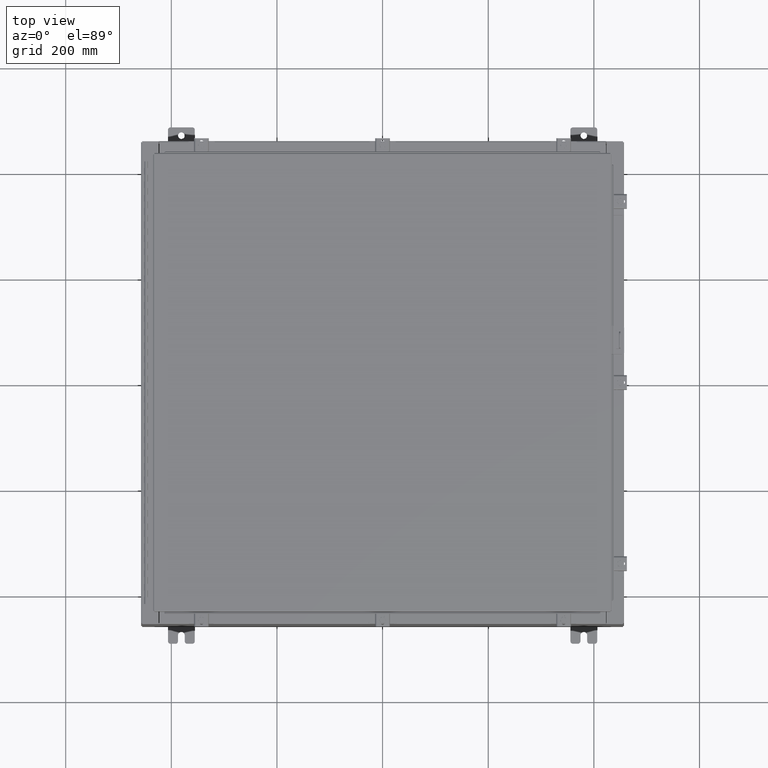
[diagram: clean part render]
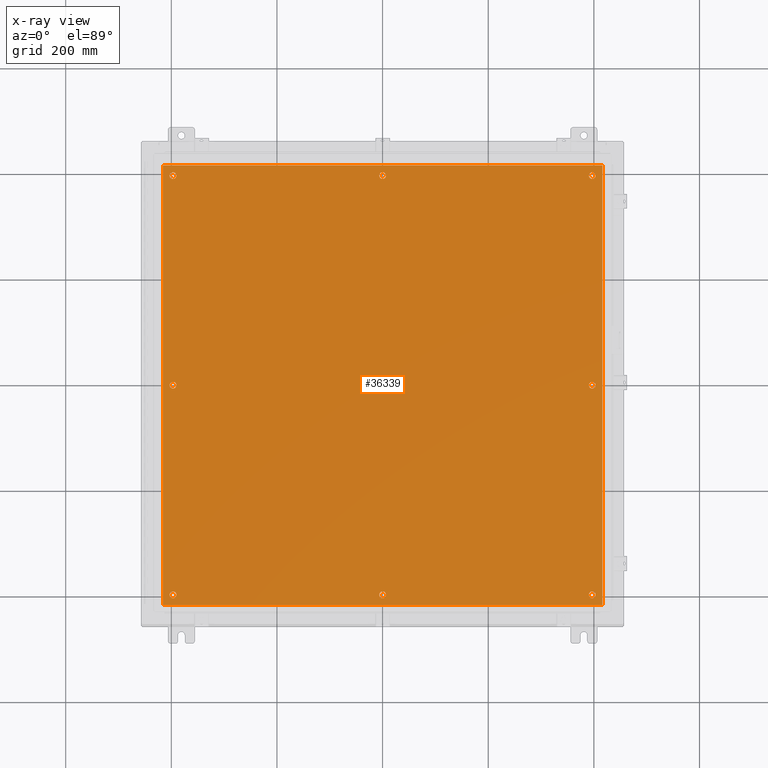
[diagram: x-ray — body ghosted, one internal face saturated and labeled with its STEP entity id]
A machine part, top view, then the same camera in x-ray: the body is ghosted and one INTERNAL B-rep face — a face not visible from any outside direction — is saturated and labeled: STEP entity #36339.
In plain terms, the highlighted planar face has unit normal (0, 0, -1).
Its self-contained STEP definition (entity closure, byte-faithful):
#210 = EDGE_CURVE ( 'NONE', #10307, #15893, #38282, .T. ) ;
#328 = CIRCLE ( 'NONE', #22552, 0.2499999999999987000 ) ;
#1016 = EDGE_LOOP ( 'NONE', ( #21510, #33920 ) ) ;
#1204 = PLANE ( 'NONE',  #42520 ) ;
#1409 = EDGE_LOOP ( 'NONE', ( #34869, #29054 ) ) ;
#1423 = ORIENTED_EDGE ( 'NONE', *, *, #12648, .F. ) ;
#1497 = VERTEX_POINT ( 'NONE', #7292 ) ;
#1652 = CIRCLE ( 'NONE', #32149, 0.2499999999999998600 ) ;
#2439 = EDGE_CURVE ( 'NONE', #15893, #10307, #1652, .T. ) ;
#2644 = CARTESIAN_POINT ( 'NONE',  ( -15.62500000000000500, 15.62500000000000400, -0.1039999999999999800 ) ) ;
#2773 = CIRCLE ( 'NONE', #20964, 0.2500000000000008900 ) ;
#2812 = VERTEX_POINT ( 'NONE', #6565 ) ;
#3148 = FACE_BOUND ( 'NONE', #32958, .T. ) ;
#3510 = DIRECTION ( 'NONE',  ( -1.000000000000000000, 0.0000000000000000000, 0.0000000000000000000 ) ) ;
#3523 = LINE ( 'NONE', #13411, #22130 ) ;
#3545 = CIRCLE ( 'NONE', #25833, 0.2500000000000011700 ) ;
#4128 = ORIENTED_EDGE ( 'NONE', *, *, #12503, .T. ) ;
#4250 = FACE_BOUND ( 'NONE', #32122, .T. ) ;
#4715 = CARTESIAN_POINT ( 'NONE',  ( 0.2500000000000011700, -15.62500000000000400, -0.1039999999999999800 ) ) ;
#4751 = CARTESIAN_POINT ( 'NONE',  ( 0.0000000000000000000, 0.0000000000000000000, -0.1039999999999999800 ) ) ;
#4968 = AXIS2_PLACEMENT_3D ( 'NONE', #29760, #29623, #29546 ) ;
#5288 = CARTESIAN_POINT ( 'NONE',  ( -15.87500000000000500, -1.892007912698979300E-015, -0.1039999999999999800 ) ) ;
#5777 = CIRCLE ( 'NONE', #10608, 0.2500000000000008900 ) ;
#5786 = CARTESIAN_POINT ( 'NONE',  ( 15.62500000000000400, 15.62500000000000400, -0.1039999999999999800 ) ) ;
#6188 = DIRECTION ( 'NONE',  ( -1.000000000000000000, 0.0000000000000000000, 0.0000000000000000000 ) ) ;
#6565 = CARTESIAN_POINT ( 'NONE',  ( -15.37500000000000400, -1.922624082677663000E-015, -0.1039999999999999800 ) ) ;
#6609 = CARTESIAN_POINT ( 'NONE',  ( 0.0000000000000000000, -15.62500000000000400, -0.1039999999999999800 ) ) ;
#6683 = CIRCLE ( 'NONE', #21271, 0.2499999999999987000 ) ;
#6799 = ORIENTED_EDGE ( 'NONE', *, *, #15759, .T. ) ;
#7034 = EDGE_CURVE ( 'NONE', #33635, #1497, #6683, .T. ) ;
#7140 = VERTEX_POINT ( 'NONE', #34266 ) ;
#7255 = CIRCLE ( 'NONE', #39128, 0.2499999999999987000 ) ;
#7279 = CARTESIAN_POINT ( 'NONE',  ( -15.62500000000000400, -1.922624082677663000E-015, -0.1039999999999999800 ) ) ;
#7292 = CARTESIAN_POINT ( 'NONE',  ( 15.37500000000000500, -15.62500000000000400, -0.1039999999999999800 ) ) ;
#7356 = AXIS2_PLACEMENT_3D ( 'NONE', #19122, #43268, #22641 ) ;
#7859 = DIRECTION ( 'NONE',  ( -1.000000000000000000, 0.0000000000000000000, 0.0000000000000000000 ) ) ;
#8093 = DIRECTION ( 'NONE',  ( 0.0000000000000000000, 1.000000000000000000, 0.0000000000000000000 ) ) ;
#8163 = EDGE_LOOP ( 'NONE', ( #24967, #1423, #14038, #37882 ) ) ;
#8490 = VERTEX_POINT ( 'NONE', #44496 ) ;
#9022 = VERTEX_POINT ( 'NONE', #14976 ) ;
#9329 = DIRECTION ( 'NONE',  ( -1.000000000000000000, 0.0000000000000000000, 0.0000000000000000000 ) ) ;
#9488 = ORIENTED_EDGE ( 'NONE', *, *, #25560, .T. ) ;
#9569 = ORIENTED_EDGE ( 'NONE', *, *, #7034, .T. ) ;
#9649 = EDGE_CURVE ( 'NONE', #24309, #40086, #37440, .T. ) ;
#10125 = DIRECTION ( 'NONE',  ( -1.000000000000000000, 0.0000000000000000000, 0.0000000000000000000 ) ) ;
#10196 = CARTESIAN_POINT ( 'NONE',  ( 15.87500000000000200, 15.62500000000000400, -0.1039999999999999800 ) ) ;
#10307 = VERTEX_POINT ( 'NONE', #37276 ) ;
#10406 = CIRCLE ( 'NONE', #31218, 0.2500000000000011700 ) ;
#10608 = AXIS2_PLACEMENT_3D ( 'NONE', #7279, #31603, #10764 ) ;
#10764 = DIRECTION ( 'NONE',  ( -1.000000000000000000, 0.0000000000000000000, 0.0000000000000000000 ) ) ;
#11042 = ORIENTED_EDGE ( 'NONE', *, *, #210, .T. ) ;
#11390 = VERTEX_POINT ( 'NONE', #10196 ) ;
#12165 = DIRECTION ( 'NONE',  ( -0.0000000000000000000, -0.0000000000000000000, 1.000000000000000000 ) ) ;
#12287 = CARTESIAN_POINT ( 'NONE',  ( -0.2500000000000011700, -15.62500000000000400, -0.1039999999999999800 ) ) ;
#12297 = ORIENTED_EDGE ( 'NONE', *, *, #17006, .T. ) ;
#12454 = FACE_BOUND ( 'NONE', #32144, .T. ) ;
#12503 = EDGE_CURVE ( 'NONE', #7140, #30389, #2773, .T. ) ;
#12611 = CIRCLE ( 'NONE', #35426, 0.2500000000000008900 ) ;
#12648 = EDGE_CURVE ( 'NONE', #16207, #26032, #43452, .T. ) ;
#13139 = CARTESIAN_POINT ( 'NONE',  ( 15.62500000000000400, 15.62500000000000400, -0.1039999999999999800 ) ) ;
#13411 = CARTESIAN_POINT ( 'NONE',  ( 16.50000000000000000, 16.38299999999999900, -0.1040000000000009100 ) ) ;
#13509 = DIRECTION ( 'NONE',  ( -1.000000000000000000, -0.0000000000000000000, -0.0000000000000000000 ) ) ;
#13520 = VERTEX_POINT ( 'NONE', #33580 ) ;
#13548 = FACE_BOUND ( 'NONE', #22700, .T. ) ;
#14038 = ORIENTED_EDGE ( 'NONE', *, *, #16325, .F. ) ;
#14249 = DIRECTION ( 'NONE',  ( -0.0000000000000000000, -0.0000000000000000000, 1.000000000000000000 ) ) ;
#14976 = CARTESIAN_POINT ( 'NONE',  ( -15.37500000000000500, -15.62500000000000400, -0.1039999999999999800 ) ) ;
#15332 = EDGE_CURVE ( 'NONE', #13520, #9022, #23298, .T. ) ;
#15759 = EDGE_CURVE ( 'NONE', #9022, #13520, #43726, .T. ) ;
#15807 = CARTESIAN_POINT ( 'NONE',  ( -16.50000000000000000, -16.38299999999999600, -0.1039999999999998100 ) ) ;
#15811 = CARTESIAN_POINT ( 'NONE',  ( -16.38299999999999900, 16.38300000000000300, -0.1040000000000009100 ) ) ;
#15883 = VECTOR ( 'NONE', #25576, 39.37007874015748100 ) ;
#15893 = VERTEX_POINT ( 'NONE', #25848 ) ;
#16207 = VERTEX_POINT ( 'NONE', #15811 ) ;
#16325 = EDGE_CURVE ( 'NONE', #20135, #16207, #3523, .T. ) ;
#16654 = DIRECTION ( 'NONE',  ( -1.000000000000000000, 0.0000000000000000000, 0.0000000000000000000 ) ) ;
#16749 = CARTESIAN_POINT ( 'NONE',  ( 15.37500000000000400, 1.935013334636500000E-015, -0.1039999999999999800 ) ) ;
#17006 = EDGE_CURVE ( 'NONE', #11390, #8490, #328, .T. ) ;
#17754 = EDGE_CURVE ( 'NONE', #29483, #2812, #5777, .T. ) ;
#17944 = EDGE_LOOP ( 'NONE', ( #6799, #28647 ) ) ;
#18415 = AXIS2_PLACEMENT_3D ( 'NONE', #42556, #42501, #42418 ) ;
#18477 = VERTEX_POINT ( 'NONE', #39322 ) ;
#18613 = CARTESIAN_POINT ( 'NONE',  ( 15.62500000000000400, -15.62500000000000400, -0.1039999999999999800 ) ) ;
#19050 = LINE ( 'NONE', #28845, #26160 ) ;
#19122 = CARTESIAN_POINT ( 'NONE',  ( 15.62500000000000400, -15.62500000000000400, -0.1039999999999999800 ) ) ;
#19247 = ORIENTED_EDGE ( 'NONE', *, *, #9649, .T. ) ;
#19511 = CIRCLE ( 'NONE', #7356, 0.2499999999999987000 ) ;
#20135 = VERTEX_POINT ( 'NONE', #25111 ) ;
#20806 = CARTESIAN_POINT ( 'NONE',  ( -15.87500000000000700, 15.62500000000000400, -0.1039999999999999800 ) ) ;
#20813 = VERTEX_POINT ( 'NONE', #4715 ) ;
#20964 = AXIS2_PLACEMENT_3D ( 'NONE', #37924, #37574, #37562 ) ;
#21271 = AXIS2_PLACEMENT_3D ( 'NONE', #18613, #39787, #7859 ) ;
#21447 = EDGE_LOOP ( 'NONE', ( #9569, #31337 ) ) ;
#21510 = ORIENTED_EDGE ( 'NONE', *, *, #42112, .T. ) ;
#21756 = FACE_BOUND ( 'NONE', #21447, .T. ) ;
#21806 = LINE ( 'NONE', #15807, #22898 ) ;
#22130 = VECTOR ( 'NONE', #13509, 39.37007874015748100 ) ;
#22203 = ORIENTED_EDGE ( 'NONE', *, *, #26680, .T. ) ;
#22552 = AXIS2_PLACEMENT_3D ( 'NONE', #13139, #37327, #16654 ) ;
#22641 = DIRECTION ( 'NONE',  ( -1.000000000000000000, 0.0000000000000000000, 0.0000000000000000000 ) ) ;
#22700 = EDGE_LOOP ( 'NONE', ( #19247, #9488 ) ) ;
#22898 = VECTOR ( 'NONE', #36510, 39.37007874015748100 ) ;
#23298 = CIRCLE ( 'NONE', #18415, 0.2499999999999987000 ) ;
#24309 = VERTEX_POINT ( 'NONE', #35835 ) ;
#24457 = DIRECTION ( 'NONE',  ( -0.0000000000000000000, -0.0000000000000000000, 1.000000000000000000 ) ) ;
#24967 = ORIENTED_EDGE ( 'NONE', *, *, #26547, .F. ) ;
#25042 = DIRECTION ( 'NONE',  ( -1.000000000000000000, 0.0000000000000000000, 0.0000000000000000000 ) ) ;
#25102 = DIRECTION ( 'NONE',  ( -0.0000000000000000000, -0.0000000000000000000, 1.000000000000000000 ) ) ;
#25111 = CARTESIAN_POINT ( 'NONE',  ( 16.38299999999999900, 16.38300000000000300, -0.1040000000000009100 ) ) ;
#25137 = CARTESIAN_POINT ( 'NONE',  ( 0.0000000000000000000, 15.62500000000000400, -0.1039999999999999800 ) ) ;
#25150 = CIRCLE ( 'NONE', #36602, 0.2500000000000008900 ) ;
#25560 = EDGE_CURVE ( 'NONE', #40086, #24309, #12611, .T. ) ;
#25576 = DIRECTION ( 'NONE',  ( 0.0000000000000000000, -1.000000000000000000, 0.0000000000000000000 ) ) ;
#25833 = AXIS2_PLACEMENT_3D ( 'NONE', #6609, #30973, #10125 ) ;
#25848 = CARTESIAN_POINT ( 'NONE',  ( -0.2499999999999998600, 15.62500000000000400, -0.1039999999999999800 ) ) ;
#26032 = VERTEX_POINT ( 'NONE', #44124 ) ;
#26160 = VECTOR ( 'NONE', #8093, 39.37007874015748100 ) ;
#26217 = CARTESIAN_POINT ( 'NONE',  ( -16.38299999999999900, 16.38300000000000300, -0.1040000000000009100 ) ) ;
#26547 = EDGE_CURVE ( 'NONE', #26032, #18477, #21806, .T. ) ;
#26600 = CARTESIAN_POINT ( 'NONE',  ( 15.62500000000000400, 1.904397164657816300E-015, -0.1039999999999999800 ) ) ;
#26680 = EDGE_CURVE ( 'NONE', #30389, #7140, #25150, .T. ) ;
#26895 = EDGE_CURVE ( 'NONE', #20813, #34036, #10406, .T. ) ;
#27113 = DIRECTION ( 'NONE',  ( -0.0000000000000000000, -0.0000000000000000000, 1.000000000000000000 ) ) ;
#27440 = CARTESIAN_POINT ( 'NONE',  ( 15.87500000000000200, -15.62500000000000400, -0.1039999999999999800 ) ) ;
#27611 = DIRECTION ( 'NONE',  ( -1.000000000000000000, 0.0000000000000000000, 0.0000000000000000000 ) ) ;
#27829 = DIRECTION ( 'NONE',  ( -0.0000000000000000000, -0.0000000000000000000, 1.000000000000000000 ) ) ;
#27929 = CARTESIAN_POINT ( 'NONE',  ( 0.0000000000000000000, 15.62500000000000400, -0.1039999999999999800 ) ) ;
#27981 = DIRECTION ( 'NONE',  ( -1.000000000000000000, 0.0000000000000000000, 0.0000000000000000000 ) ) ;
#28065 = DIRECTION ( 'NONE',  ( -0.0000000000000000000, -0.0000000000000000000, 1.000000000000000000 ) ) ;
#28170 = CARTESIAN_POINT ( 'NONE',  ( 15.62500000000000400, 1.904397164657816300E-015, -0.1039999999999999800 ) ) ;
#28279 = EDGE_CURVE ( 'NONE', #1497, #33635, #19511, .T. ) ;
#28647 = ORIENTED_EDGE ( 'NONE', *, *, #15332, .T. ) ;
#28845 = CARTESIAN_POINT ( 'NONE',  ( 16.38299999999999900, -16.38299999999999600, -0.1040000000000009100 ) ) ;
#29054 = ORIENTED_EDGE ( 'NONE', *, *, #44574, .T. ) ;
#29187 = DIRECTION ( 'NONE',  ( -1.000000000000000000, 0.0000000000000000000, -0.0000000000000000000 ) ) ;
#29483 = VERTEX_POINT ( 'NONE', #5288 ) ;
#29546 = DIRECTION ( 'NONE',  ( -1.000000000000000000, 0.0000000000000000000, 0.0000000000000000000 ) ) ;
#29623 = DIRECTION ( 'NONE',  ( -0.0000000000000000000, -0.0000000000000000000, 1.000000000000000000 ) ) ;
#29760 = CARTESIAN_POINT ( 'NONE',  ( -15.62500000000000400, -15.62500000000000400, -0.1039999999999999800 ) ) ;
#30170 = DIRECTION ( 'NONE',  ( -0.0000000000000000000, -0.0000000000000000000, 1.000000000000000000 ) ) ;
#30389 = VERTEX_POINT ( 'NONE', #20806 ) ;
#30483 = AXIS2_PLACEMENT_3D ( 'NONE', #28170, #28065, #27981 ) ;
#30973 = DIRECTION ( 'NONE',  ( -0.0000000000000000000, -0.0000000000000000000, 1.000000000000000000 ) ) ;
#30991 = FACE_BOUND ( 'NONE', #17944, .T. ) ;
#31218 = AXIS2_PLACEMENT_3D ( 'NONE', #34991, #14249, #38460 ) ;
#31337 = ORIENTED_EDGE ( 'NONE', *, *, #28279, .T. ) ;
#31603 = DIRECTION ( 'NONE',  ( -0.0000000000000000000, -0.0000000000000000000, 1.000000000000000000 ) ) ;
#32028 = FACE_BOUND ( 'NONE', #1409, .T. ) ;
#32122 = EDGE_LOOP ( 'NONE', ( #11042, #32766 ) ) ;
#32144 = EDGE_LOOP ( 'NONE', ( #12297, #43151 ) ) ;
#32149 = AXIS2_PLACEMENT_3D ( 'NONE', #27929, #27829, #27611 ) ;
#32435 = DIRECTION ( 'NONE',  ( 0.0000000000000000000, 0.0000000000000000000, -1.000000000000000000 ) ) ;
#32766 = ORIENTED_EDGE ( 'NONE', *, *, #2439, .T. ) ;
#32944 = CARTESIAN_POINT ( 'NONE',  ( -15.62500000000000400, -1.922624082677663000E-015, -0.1039999999999999800 ) ) ;
#32948 = EDGE_CURVE ( 'NONE', #8490, #11390, #7255, .T. ) ;
#32958 = EDGE_LOOP ( 'NONE', ( #4128, #22203 ) ) ;
#33580 = CARTESIAN_POINT ( 'NONE',  ( -15.87500000000000200, -15.62500000000000400, -0.1039999999999999800 ) ) ;
#33635 = VERTEX_POINT ( 'NONE', #27440 ) ;
#33920 = ORIENTED_EDGE ( 'NONE', *, *, #17754, .T. ) ;
#34036 = VERTEX_POINT ( 'NONE', #12287 ) ;
#34266 = CARTESIAN_POINT ( 'NONE',  ( -15.37500000000000500, 15.62500000000000400, -0.1039999999999999800 ) ) ;
#34869 = ORIENTED_EDGE ( 'NONE', *, *, #26895, .T. ) ;
#34987 = EDGE_CURVE ( 'NONE', #18477, #20135, #19050, .T. ) ;
#34991 = CARTESIAN_POINT ( 'NONE',  ( 0.0000000000000000000, -15.62500000000000400, -0.1039999999999999800 ) ) ;
#35426 = AXIS2_PLACEMENT_3D ( 'NONE', #26600, #24457, #3510 ) ;
#35835 = CARTESIAN_POINT ( 'NONE',  ( 15.87500000000000500, 1.904397164657816300E-015, -0.1039999999999999800 ) ) ;
#36339 = ADVANCED_FACE ( 'NONE', ( #32028, #4250, #13548, #43311, #30991, #21756, #12454, #3148, #38989 ), #1204, .T. ) ;
#36385 = DIRECTION ( 'NONE',  ( -1.000000000000000000, 0.0000000000000000000, 0.0000000000000000000 ) ) ;
#36510 = DIRECTION ( 'NONE',  ( 1.000000000000000000, -0.0000000000000000000, -0.0000000000000000000 ) ) ;
#36602 = AXIS2_PLACEMENT_3D ( 'NONE', #2644, #27113, #6188 ) ;
#37276 = CARTESIAN_POINT ( 'NONE',  ( 0.2499999999999998600, 15.62500000000000400, -0.1039999999999999800 ) ) ;
#37327 = DIRECTION ( 'NONE',  ( -0.0000000000000000000, -0.0000000000000000000, 1.000000000000000000 ) ) ;
#37440 = CIRCLE ( 'NONE', #30483, 0.2500000000000008900 ) ;
#37562 = DIRECTION ( 'NONE',  ( -1.000000000000000000, 0.0000000000000000000, 0.0000000000000000000 ) ) ;
#37574 = DIRECTION ( 'NONE',  ( -0.0000000000000000000, -0.0000000000000000000, 1.000000000000000000 ) ) ;
#37882 = ORIENTED_EDGE ( 'NONE', *, *, #34987, .F. ) ;
#37924 = CARTESIAN_POINT ( 'NONE',  ( -15.62500000000000500, 15.62500000000000400, -0.1039999999999999800 ) ) ;
#38282 = CIRCLE ( 'NONE', #40660, 0.2499999999999998600 ) ;
#38460 = DIRECTION ( 'NONE',  ( -1.000000000000000000, 0.0000000000000000000, 0.0000000000000000000 ) ) ;
#38959 = AXIS2_PLACEMENT_3D ( 'NONE', #32944, #12165, #36385 ) ;
#38989 = FACE_OUTER_BOUND ( 'NONE', #8163, .T. ) ;
#39128 = AXIS2_PLACEMENT_3D ( 'NONE', #5786, #30170, #9329 ) ;
#39322 = CARTESIAN_POINT ( 'NONE',  ( 16.38299999999999900, -16.38299999999999600, -0.1040000000000009100 ) ) ;
#39787 = DIRECTION ( 'NONE',  ( -0.0000000000000000000, -0.0000000000000000000, 1.000000000000000000 ) ) ;
#40086 = VERTEX_POINT ( 'NONE', #16749 ) ;
#40660 = AXIS2_PLACEMENT_3D ( 'NONE', #25137, #25102, #25042 ) ;
#42112 = EDGE_CURVE ( 'NONE', #2812, #29483, #44672, .T. ) ;
#42418 = DIRECTION ( 'NONE',  ( -1.000000000000000000, 0.0000000000000000000, 0.0000000000000000000 ) ) ;
#42501 = DIRECTION ( 'NONE',  ( -0.0000000000000000000, -0.0000000000000000000, 1.000000000000000000 ) ) ;
#42520 = AXIS2_PLACEMENT_3D ( 'NONE', #4751, #32435, #29187 ) ;
#42556 = CARTESIAN_POINT ( 'NONE',  ( -15.62500000000000400, -15.62500000000000400, -0.1039999999999999800 ) ) ;
#43151 = ORIENTED_EDGE ( 'NONE', *, *, #32948, .T. ) ;
#43268 = DIRECTION ( 'NONE',  ( -0.0000000000000000000, -0.0000000000000000000, 1.000000000000000000 ) ) ;
#43311 = FACE_BOUND ( 'NONE', #1016, .T. ) ;
#43452 = LINE ( 'NONE', #26217, #15883 ) ;
#43726 = CIRCLE ( 'NONE', #4968, 0.2499999999999987000 ) ;
#44124 = CARTESIAN_POINT ( 'NONE',  ( -16.38299999999999900, -16.38299999999999600, -0.1039999999999998100 ) ) ;
#44496 = CARTESIAN_POINT ( 'NONE',  ( 15.37500000000000500, 15.62500000000000400, -0.1039999999999999800 ) ) ;
#44574 = EDGE_CURVE ( 'NONE', #34036, #20813, #3545, .T. ) ;
#44672 = CIRCLE ( 'NONE', #38959, 0.2500000000000008900 ) ;